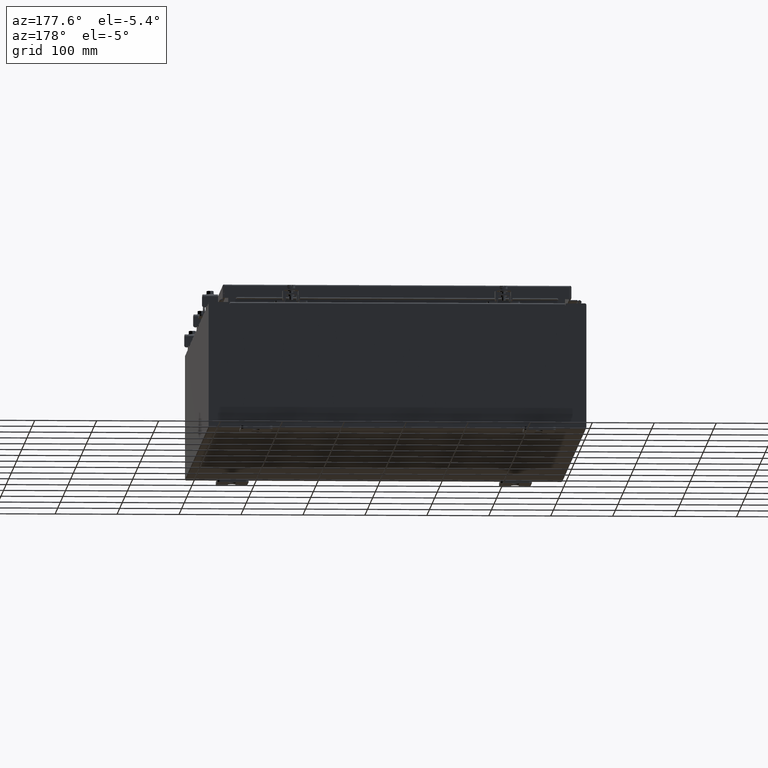
[diagram: clean part render]
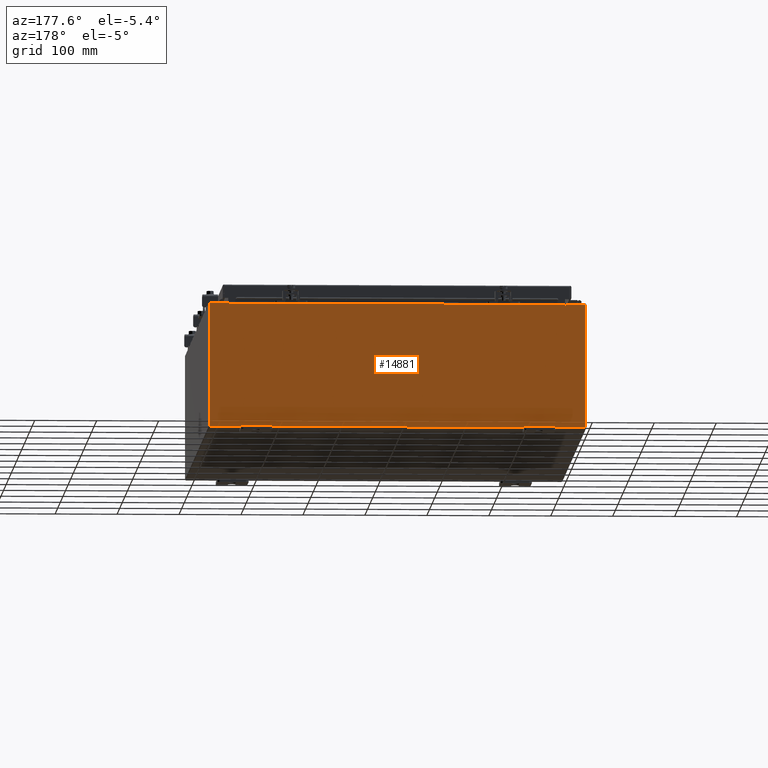
[diagram: same view with one face highlighted and labeled with its STEP entity id]
A machine part, auxiliary view. The second image highlights one B-rep face of the part: STEP entity #14881.
In plain terms, the highlighted planar face has unit normal (0, -1, 0).
Its self-contained STEP definition (entity closure, byte-faithful):
#419 = AXIS2_PLACEMENT_3D ( 'NONE', #6719, #5243, #5103 ) ;
#766 = LINE ( 'NONE', #33131, #41952 ) ;
#1084 = EDGE_CURVE ( 'NONE', #35773, #27038, #28898, .T. ) ;
#1795 = CARTESIAN_POINT ( 'NONE',  ( -11.92530000000000000, 0.0000000000000000000, 3.925299999999999600 ) ) ;
#1803 = LINE ( 'NONE', #7918, #26802 ) ;
#2708 = VERTEX_POINT ( 'NONE', #14289 ) ;
#3069 = EDGE_CURVE ( 'NONE', #29724, #30448, #34490, .T. ) ;
#3535 = CARTESIAN_POINT ( 'NONE',  ( 11.92530000000000000, 0.0000000000000000000, 3.925299999999999600 ) ) ;
#4599 = DIRECTION ( 'NONE',  ( 0.0000000000000000000, 0.0000000000000000000, 1.000000000000000000 ) ) ;
#5093 = VECTOR ( 'NONE', #23247, 39.37007874015748100 ) ;
#5103 = DIRECTION ( 'NONE',  ( 0.0000000000000000000, 0.0000000000000000000, -1.000000000000000000 ) ) ;
#5243 = DIRECTION ( 'NONE',  ( -0.0000000000000000000, 1.000000000000000000, -0.0000000000000000000 ) ) ;
#5413 = EDGE_CURVE ( 'NONE', #27063, #27038, #766, .T. ) ;
#6455 = DIRECTION ( 'NONE',  ( 0.0000000000000000000, 0.0000000000000000000, 1.000000000000000000 ) ) ;
#6719 = CARTESIAN_POINT ( 'NONE',  ( -10.65587500000000200, 0.0000000000000000000, 3.874949999999999700 ) ) ;
#6864 = CARTESIAN_POINT ( 'NONE',  ( 11.92530000000000000, 0.0000000000000000000, 3.925299999999999600 ) ) ;
#7153 = EDGE_CURVE ( 'NONE', #11006, #35773, #35508, .T. ) ;
#7651 = VECTOR ( 'NONE', #28739, 39.37007874015748100 ) ;
#7843 = DIRECTION ( 'NONE',  ( -0.0000000000000000000, -0.0000000000000000000, 1.000000000000000000 ) ) ;
#7852 = CARTESIAN_POINT ( 'NONE',  ( -10.67455000000000200, -0.0000000000000000000, 0.0000000000000000000 ) ) ;
#7918 = CARTESIAN_POINT ( 'NONE',  ( -11.92530000000000000, 0.0000000000000000000, 3.925299999999999600 ) ) ;
#8475 = VECTOR ( 'NONE', #40728, 39.37007874015748100 ) ;
#9085 = EDGE_CURVE ( 'NONE', #28520, #34519, #1803, .T. ) ;
#9645 = CARTESIAN_POINT ( 'NONE',  ( 10.63720000000000400, 0.0000000000000000000, 3.912299999999999700 ) ) ;
#9718 = EDGE_CURVE ( 'NONE', #2708, #29724, #32530, .T. ) ;
#10512 = LINE ( 'NONE', #1795, #8475 ) ;
#10781 = AXIS2_PLACEMENT_3D ( 'NONE', #23444, #23143, #23238 ) ;
#11006 = VERTEX_POINT ( 'NONE', #41899 ) ;
#12722 = ORIENTED_EDGE ( 'NONE', *, *, #5413, .T. ) ;
#12725 = CARTESIAN_POINT ( 'NONE',  ( 11.92530000000000000, 0.0000000000000000000, -3.925299999999999600 ) ) ;
#13457 = CARTESIAN_POINT ( 'NONE',  ( -11.92530000000000000, 0.0000000000000000000, 3.925299999999999600 ) ) ;
#14289 = CARTESIAN_POINT ( 'NONE',  ( -10.63720000000000400, -0.0000000000000000000, 3.874949999999999700 ) ) ;
#14686 = ORIENTED_EDGE ( 'NONE', *, *, #26014, .F. ) ;
#14881 = ADVANCED_FACE ( 'NONE', ( #17537 ), #29601, .F. ) ;
#15736 = CARTESIAN_POINT ( 'NONE',  ( -10.63720000000000400, -0.0000000000000000000, 0.0000000000000000000 ) ) ;
#16760 = EDGE_LOOP ( 'NONE', ( #39684, #30453, #31379, #12722, #34447, #23864, #14686, #35441, #36959, #35918, #36317, #17557 ) ) ;
#16952 = LINE ( 'NONE', #20144, #41789 ) ;
#17100 = CARTESIAN_POINT ( 'NONE',  ( -10.67455000000000200, 0.0000000000000000000, 3.925299999999999600 ) ) ;
#17187 = DIRECTION ( 'NONE',  ( -4.340572780400004900E-014, 0.0000000000000000000, -1.000000000000000000 ) ) ;
#17238 = EDGE_CURVE ( 'NONE', #21284, #28520, #28942, .T. ) ;
#17537 = FACE_OUTER_BOUND ( 'NONE', #16760, .T. ) ;
#17557 = ORIENTED_EDGE ( 'NONE', *, *, #30611, .T. ) ;
#19301 = CARTESIAN_POINT ( 'NONE',  ( -11.92530000000000000, 0.0000000000000000000, -3.925299999999999600 ) ) ;
#19738 = VERTEX_POINT ( 'NONE', #6864 ) ;
#19953 = AXIS2_PLACEMENT_3D ( 'NONE', #29561, #29489, #29486 ) ;
#20144 = CARTESIAN_POINT ( 'NONE',  ( 10.67454999999983300, -0.0000000000000000000, -4.633366117301815000E-013 ) ) ;
#20250 = VECTOR ( 'NONE', #4599, 39.37007874015748100 ) ;
#20292 = VECTOR ( 'NONE', #29082, 39.37007874015748100 ) ;
#20598 = CARTESIAN_POINT ( 'NONE',  ( 10.63720000000000400, 0.0000000000000000000, 0.0000000000000000000 ) ) ;
#21284 = VERTEX_POINT ( 'NONE', #12725 ) ;
#21432 = CARTESIAN_POINT ( 'NONE',  ( -11.92530000000000000, 0.0000000000000000000, 3.925299999999999600 ) ) ;
#23035 = DIRECTION ( 'NONE',  ( 0.0000000000000000000, 0.0000000000000000000, -1.000000000000000000 ) ) ;
#23143 = DIRECTION ( 'NONE',  ( -0.0000000000000000000, 1.000000000000000000, -0.0000000000000000000 ) ) ;
#23238 = DIRECTION ( 'NONE',  ( 0.0000000000000000000, 0.0000000000000000000, -1.000000000000000000 ) ) ;
#23247 = DIRECTION ( 'NONE',  ( 1.000000000000000000, 0.0000000000000000000, 0.0000000000000000000 ) ) ;
#23444 = CARTESIAN_POINT ( 'NONE',  ( 10.65587500000000200, 0.0000000000000000000, 3.874949999999999700 ) ) ;
#23864 = ORIENTED_EDGE ( 'NONE', *, *, #7153, .F. ) ;
#25847 = CARTESIAN_POINT ( 'NONE',  ( -10.67455000000000200, 0.0000000000000000000, 3.874949999999999700 ) ) ;
#26014 = EDGE_CURVE ( 'NONE', #34288, #11006, #16952, .T. ) ;
#26802 = VECTOR ( 'NONE', #7843, 39.37007874015748100 ) ;
#27038 = VERTEX_POINT ( 'NONE', #9645 ) ;
#27063 = VERTEX_POINT ( 'NONE', #35474 ) ;
#28520 = VERTEX_POINT ( 'NONE', #36624 ) ;
#28701 = EDGE_CURVE ( 'NONE', #27063, #2708, #32435, .T. ) ;
#28739 = DIRECTION ( 'NONE',  ( 0.0000000000000000000, 0.0000000000000000000, -1.000000000000000000 ) ) ;
#28898 = LINE ( 'NONE', #20598, #20250 ) ;
#28942 = LINE ( 'NONE', #19301, #20292 ) ;
#29082 = DIRECTION ( 'NONE',  ( -1.000000000000000000, -0.0000000000000000000, -0.0000000000000000000 ) ) ;
#29218 = DIRECTION ( 'NONE',  ( 1.000000000000000000, 0.0000000000000000000, 0.0000000000000000000 ) ) ;
#29486 = DIRECTION ( 'NONE',  ( 0.0000000000000000000, -0.0000000000000000000, -1.000000000000000000 ) ) ;
#29489 = DIRECTION ( 'NONE',  ( 0.0000000000000000000, -1.000000000000000000, 0.0000000000000000000 ) ) ;
#29561 = CARTESIAN_POINT ( 'NONE',  ( 0.0000000000000000000, 0.0000000000000000000, 0.0000000000000000000 ) ) ;
#29601 = PLANE ( 'NONE',  #19953 ) ;
#29724 = VERTEX_POINT ( 'NONE', #25847 ) ;
#30448 = VERTEX_POINT ( 'NONE', #17100 ) ;
#30453 = ORIENTED_EDGE ( 'NONE', *, *, #9718, .F. ) ;
#30611 = EDGE_CURVE ( 'NONE', #34519, #30448, #10512, .T. ) ;
#30735 = LINE ( 'NONE', #3535, #40352 ) ;
#30934 = EDGE_CURVE ( 'NONE', #19738, #21284, #30735, .T. ) ;
#31379 = ORIENTED_EDGE ( 'NONE', *, *, #28701, .F. ) ;
#32435 = LINE ( 'NONE', #15736, #7651 ) ;
#32530 = CIRCLE ( 'NONE', #419, 0.01867499999999949400 ) ;
#33131 = CARTESIAN_POINT ( 'NONE',  ( -10.63720000000000400, 1.024442997624098700E-016, 3.912299999999999700 ) ) ;
#34288 = VERTEX_POINT ( 'NONE', #39701 ) ;
#34447 = ORIENTED_EDGE ( 'NONE', *, *, #1084, .F. ) ;
#34490 = LINE ( 'NONE', #7852, #42123 ) ;
#34519 = VERTEX_POINT ( 'NONE', #21432 ) ;
#35415 = EDGE_CURVE ( 'NONE', #34288, #19738, #39573, .T. ) ;
#35441 = ORIENTED_EDGE ( 'NONE', *, *, #35415, .T. ) ;
#35474 = CARTESIAN_POINT ( 'NONE',  ( -10.63720000000000400, 1.024442997624098700E-016, 3.912299999999999700 ) ) ;
#35508 = CIRCLE ( 'NONE', #10781, 0.01867499999999949400 ) ;
#35773 = VERTEX_POINT ( 'NONE', #38210 ) ;
#35918 = ORIENTED_EDGE ( 'NONE', *, *, #17238, .T. ) ;
#36317 = ORIENTED_EDGE ( 'NONE', *, *, #9085, .T. ) ;
#36624 = CARTESIAN_POINT ( 'NONE',  ( -11.92530000000000000, 0.0000000000000000000, -3.925299999999999600 ) ) ;
#36959 = ORIENTED_EDGE ( 'NONE', *, *, #30934, .T. ) ;
#38210 = CARTESIAN_POINT ( 'NONE',  ( 10.63720000000000400, 0.0000000000000000000, 3.874949999999999700 ) ) ;
#39573 = LINE ( 'NONE', #13457, #5093 ) ;
#39684 = ORIENTED_EDGE ( 'NONE', *, *, #3069, .F. ) ;
#39701 = CARTESIAN_POINT ( 'NONE',  ( 10.67455000000000200, 0.0000000000000000000, 3.925299999999999600 ) ) ;
#40352 = VECTOR ( 'NONE', #23035, 39.37007874015748100 ) ;
#40728 = DIRECTION ( 'NONE',  ( 1.000000000000000000, 0.0000000000000000000, 0.0000000000000000000 ) ) ;
#41789 = VECTOR ( 'NONE', #17187, 39.37007874015748100 ) ;
#41899 = CARTESIAN_POINT ( 'NONE',  ( 10.67455000000000200, 0.0000000000000000000, 3.874949999999999700 ) ) ;
#41952 = VECTOR ( 'NONE', #29218, 39.37007874015748100 ) ;
#42123 = VECTOR ( 'NONE', #6455, 39.37007874015748100 ) ;